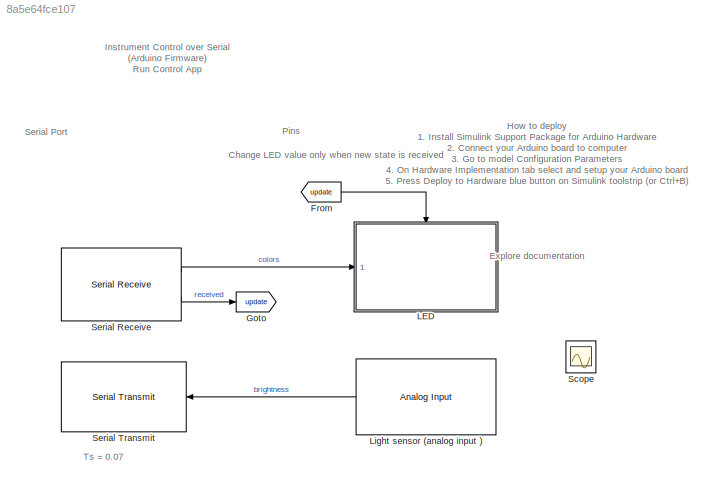
MODEL slx_8a5e64fce107
KIND model
CONFIG AbsTol = auto
CONFIG EnableMultiTasking = off
CONFIG FixedStep = auto
CONFIG MaxStep = auto
CONFIG MinStep = auto
CONFIG RelTol = 1e-3
CONFIG SampleTimeConstraint = Unconstrained
CONFIG Solver = FixedStepDiscrete
CONFIG SolverName = FixedStepDiscrete
CONFIG StartTime = 0.0
CONFIG StopTime = 10
BLOCK [From] From
  GotoTag = update
  TagVisibility = global
BLOCK [Goto] Goto
  GotoTag = update
  TagVisibility = global
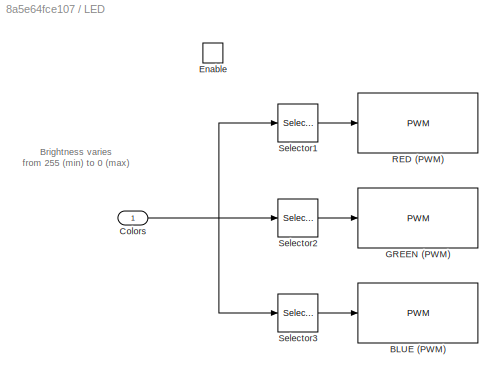
BLOCK [SubSystem] LED
  Ports = [1, 0, 1]
  RequestExecContextInheritance = off
  TreatAsAtomicUnit = on
BLOCK [Reference] LED/BLUE (PWM)  REF=arduinolib/PWM
  Ports = [1]
  SourceBlock = arduinolib/PWM
  SourceProductBaseCode = ARDUINO
  SourceProductName = Simulink Support Package for Arduino Hardware
  SourceType = Arduino PWM
BLOCK [Inport] LED/Colors
  IconDisplay = Port number
  OutDataTypeStr = uint8
BLOCK [EnablePort] LED/Enable
  Ports = []
BLOCK [Reference] LED/GREEN (PWM)  REF=arduinolib/PWM
  Ports = [1]
  SourceBlock = arduinolib/PWM
  SourceProductBaseCode = ARDUINO
  SourceProductName = Simulink Support Package for Arduino Hardware
  SourceType = Arduino PWM
BLOCK [Reference] LED/RED (PWM)  REF=arduinolib/PWM
  Ports = [1]
  SourceBlock = arduinolib/PWM
  SourceProductBaseCode = ARDUINO
  SourceProductName = Simulink Support Package for Arduino Hardware
  SourceType = Arduino PWM
BLOCK [Selector] LED/Selector1
  IndexOptions = Index vector (dialog)
  Indices = 1
  InputPortWidth = 3
  OutputSizes = 1
  Ports = [1, 1]
BLOCK [Selector] LED/Selector2
  IndexOptions = Index vector (dialog)
  Indices = 2
  InputPortWidth = 3
  OutputSizes = 1
  Ports = [1, 1]
BLOCK [Selector] LED/Selector3
  IndexOptions = Index vector (dialog)
  Indices = 3
  InputPortWidth = 3
  OutputSizes = 1
  Ports = [1, 1]
BLOCK [Reference] Light sensor (analog input )  REF=arduinolib/Analog Input
  AttributesFormatString = Ts = %<SampleTime>
  Ports = [0, 1]
  SourceBlock = arduinolib/Analog Input
  SourceProductBaseCode = ARDUINO
  SourceProductName = Simulink Support Package for Arduino Hardware
  SourceType = Arduino Analog Input
BLOCK [Scope] Scope
  Floating = off
  IOType = viewer
  NumInputPorts = 1
  Ports = []
  ScopeSpecificationString = Simulink.scopes.TimeScopeBlockCfg('CurrentConfiguration', extmgr.ConfigurationSet(extmgr.Configuration('Core','General UI',true),extmgr.Configuration('Core','Source UI',true),extmgr.Configuration('Sources','WiredSimulink',true),extmgr.Configuration('Visuals','Time Domain',true,'SerializedDisplays',{struct('MinYLimReal','-0.125','MaxYLimReal','1.125','YLabelReal','','MinYLimMag','0.00000','MaxYLimM...<+1308ch>
BLOCK [Reference] Serial Receive  REF=arduinolib/Serial Receive
  AttributesFormatString = Ts = %<SampleTime>
  Ports = [0, 2]
  SourceBlock = arduinolib/Serial Receive
  SourceProductBaseCode = ARDUINO
  SourceProductName = Simulink Support Package for Arduino Hardware
  SourceType = Arduino Serial Receive
BLOCK [Reference] Serial Transmit  REF=arduinolib/Serial Transmit
  Ports = [1]
  SourceBlock = arduinolib/Serial Transmit
  SourceProductBaseCode = ARDUINO
  SourceProductName = Simulink Support Package for Arduino Hardware
  SourceType = Arduino Serial Transmit
ANNOTATION (root): Instrument Control over Serial (Arduino Firmware) Run Control App
ANNOTATION (root): Explore documentation
ANNOTATION (root): How to deploy 1. Install Simulink Support Package for Arduino Hardware 2. Connect your Arduino board to computer 3. Go to model Configuration Parameters 4. On Hardware Implementation tab select and setup your Arduino board 5. Press Deploy to Hardware blue button on Simulink toolstrip (or Ctrl+B)
ANNOTATION (root): Change LED value only when new state is received
ANNOTATION (root): Pins
ANNOTATION (root): Serial Port
ANNOTATION (root): Ts = 0.07
ANNOTATION LED: Brightness varies from 255 (min) to 0 (max)
LINE From:1 -> LED:enable
NET LED/Colors:1 -> LED/Selector1:1, LED/Selector2:1, LED/Selector3:1
LINE LED/Selector1:1 -> LED/RED (PWM):1
LINE LED/Selector2:1 -> LED/GREEN (PWM):1
LINE LED/Selector3:1 -> LED/BLUE (PWM):1
LINE Light sensor (analog input ):1 -> Serial Transmit:1
LINE Serial Receive:1 -> LED:1
LINE Serial Receive:2 -> Goto:1
note: NET lines group one-source signal fan-out (src -> all destinations, sorted); 1:1 wires keep LINE
